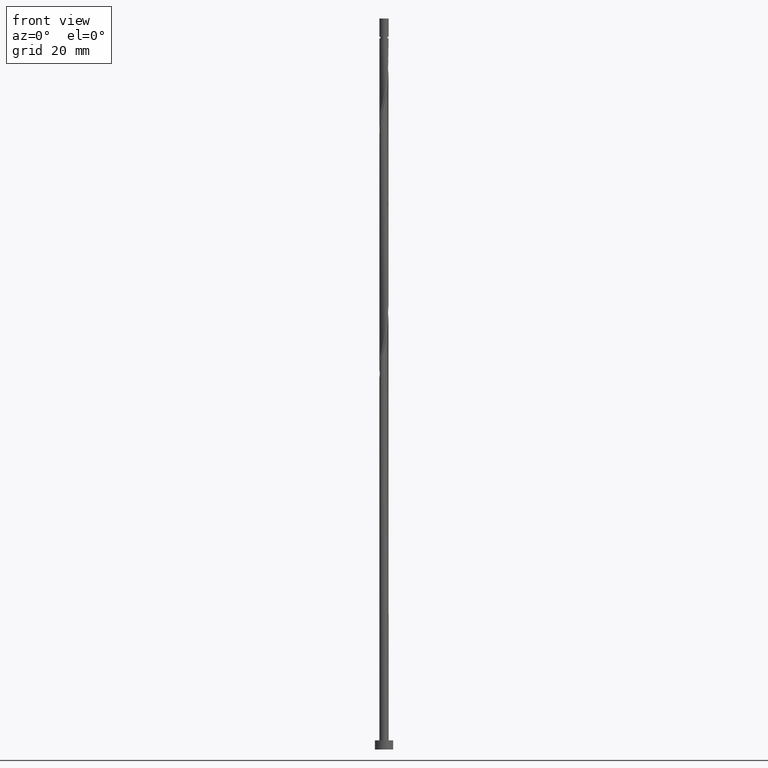
[diagram: clean part render]
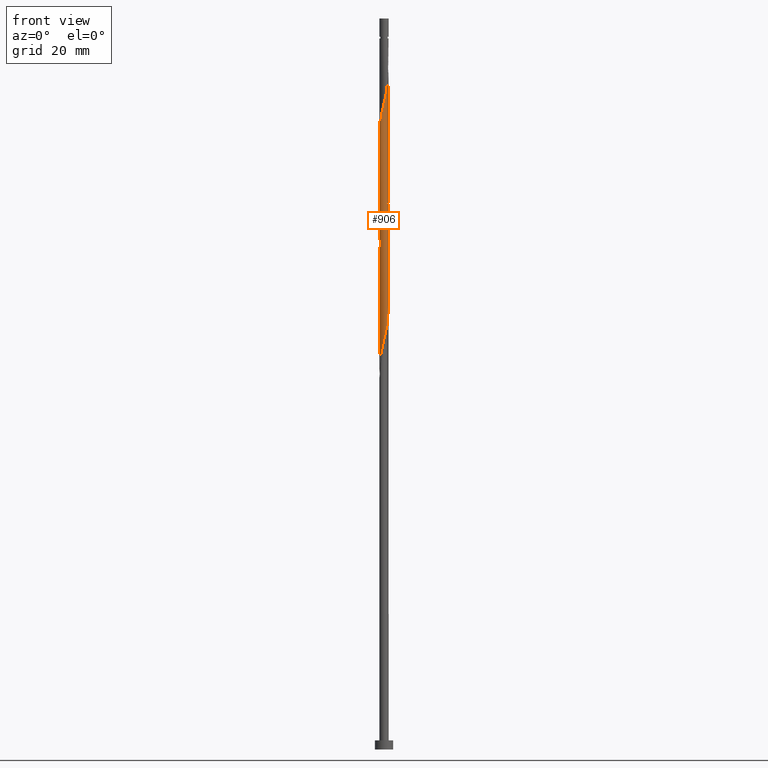
[diagram: same view with one face highlighted and labeled with its STEP entity id]
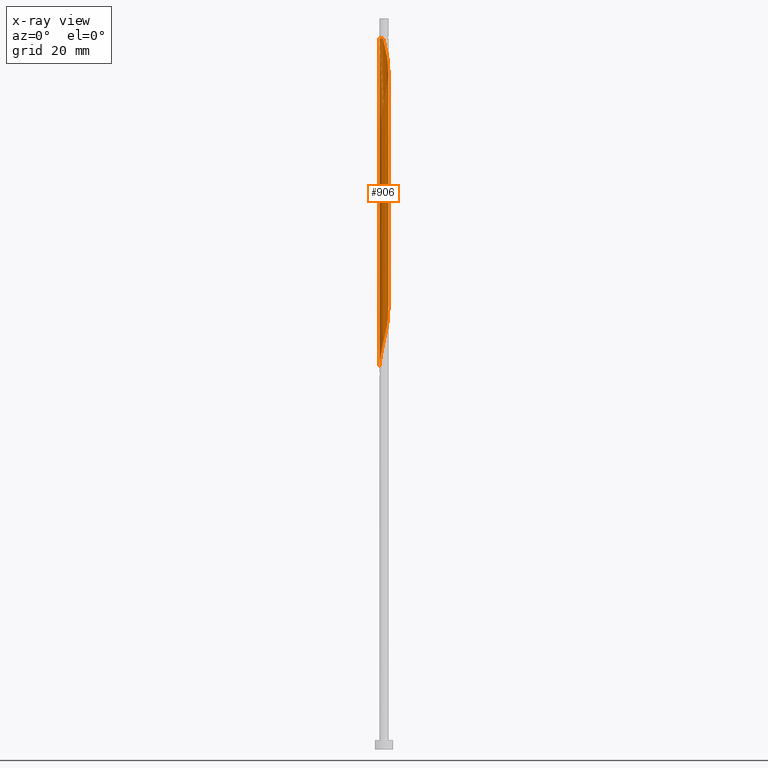
[diagram: x-ray of the same camera — body ghosted, the highlighted face saturated]
A machine part, front view. The second image highlights one B-rep face of the part: STEP entity #906.
The next image is the same camera in x-ray: the body ghosted, the highlighted face saturated — about 0% of this face is hidden behind the body in this view.
In plain terms, the highlighted cylindrical surface (bore or boss wall) has radius 1 mm, axis along (-0, -0, -1).
Its self-contained STEP definition (entity closure, byte-faithful):
#2 = CARTESIAN_POINT ( 'NONE',  ( -0.9417047178041579869, 0.3364405214378821118, 135.0104604436105262 ) ) ;
#5 = CARTESIAN_POINT ( 'NONE',  ( -1.000000000000001554, 1.495682070349635480E-16, 134.7670665703702184 ) ) ;
#14 = ORIENTED_EDGE ( 'NONE', *, *, #654, .T. ) ;
#27 = CARTESIAN_POINT ( 'NONE',  ( -0.9983453082824710334, -0.05750343842224310553, 135.0104604436104978 ) ) ;
#38 = DIRECTION ( 'NONE',  ( -1.000000000000000000, 0.000000000000000000, 0.000000000000000000 ) ) ;
#42 = VERTEX_POINT ( 'NONE', #848 ) ;
#56 = CARTESIAN_POINT ( 'NONE',  ( 0.9415987439861390751, 0.3661475155560027783, 98.04076347391352897 ) ) ;
#58 = ORIENTED_EDGE ( 'NONE', *, *, #1383, .T. ) ;
#66 = CARTESIAN_POINT ( 'NONE',  ( 0.6972353404242070951, 0.7168422979034808629, 99.85894529209534198 ) ) ;
#73 = CARTESIAN_POINT ( 'NONE',  ( -0.5941689777682084284, -0.8170896056626779647, 113.7983392314893081 ) ) ;
#81 = CARTESIAN_POINT ( 'NONE',  ( 0.9983453082824710334, -0.05750343842224334839, 122.8892483223984016 ) ) ;
#98 = CARTESIAN_POINT ( 'NONE',  ( -0.4670345966523055670, -0.8842390432059765715, 87.73773317088321733 ) ) ;
#118 = CARTESIAN_POINT ( 'NONE',  ( 0.7242137496448688427, 0.7044051693801136604, 151.3740968072468718 ) ) ;
#121 = ORIENTED_EDGE ( 'NONE', *, *, #484, .F. ) ;
#125 = CARTESIAN_POINT ( 'NONE',  ( 0.8003017030802060949, -0.6165949901442836500, 145.3134907466407526 ) ) ;
#133 = CARTESIAN_POINT ( 'NONE',  ( -0.9900775620072760352, 0.2010438236649824961, 135.6165210496711211 ) ) ;
#135 = CARTESIAN_POINT ( 'NONE',  ( 0.9417047178041579869, 0.3364405214378818343, 149.5559149890650588 ) ) ;
#146 = CARTESIAN_POINT ( 'NONE',  ( -1.000000000000001110, -0.02877552652382780324, 134.8891645750884152 ) ) ;
#169 = CARTESIAN_POINT ( 'NONE',  ( 0.8933318736010402716, -0.4718372192107816998, 121.0710665042165601 ) ) ;
#180 = CARTESIAN_POINT ( 'NONE',  ( -0.4964241347574803176, 0.8799064019851173812, 105.3134907466408094 ) ) ;
#187 = EDGE_CURVE ( 'NONE', #1030, #42, #781, .T. ) ;
#191 = CARTESIAN_POINT ( 'NONE',  ( -0.7242137496448687317, 0.7044051693801144376, 106.5256119587620134 ) ) ;
#199 = CARTESIAN_POINT ( 'NONE',  ( 0.4670345966523056225, 0.8842390432059765715, 101.0710665042165601 ) ) ;
#208 = CARTESIAN_POINT ( 'NONE',  ( -0.1989974874213290557, -0.9800000000000004263, 88.94985438300443548 ) ) ;
#231 = ORIENTED_EDGE ( 'NONE', *, *, #187, .F. ) ;
#234 = CARTESIAN_POINT ( 'NONE',  ( -0.8087728116229543351, 0.5881211942954479577, 133.7983392314892797 ) ) ;
#242 = CARTESIAN_POINT ( 'NONE',  ( 0.7242137496448688427, -0.7044051693801139935, 93.19227862542872742 ) ) ;
#243 = CARTESIAN_POINT ( 'NONE',  ( 0.4670345966523055115, -0.8842390432059766825, 143.4953089284589964 ) ) ;
#246 = DIRECTION ( 'NONE',  ( -0.000000000000000000, -0.000000000000000000, -1.000000000000000000 ) ) ;
#249 = CARTESIAN_POINT ( 'NONE',  ( 0.6972353404242072061, -0.7168422979034807518, 144.7074301405801577 ) ) ;
#257 = CARTESIAN_POINT ( 'NONE',  ( -0.05809475930625484369, 1.008611519250725008, 155.0104604436105262 ) ) ;
#272 = VERTEX_POINT ( 'NONE', #934 ) ;
#308 = CARTESIAN_POINT ( 'NONE',  ( 0.05809475930625499634, 1.008611519250725230, 102.8892483223983874 ) ) ;
#313 = CARTESIAN_POINT ( 'NONE',  ( -0.9417047178041579869, 0.3364405214378821118, 108.3437937769438406 ) ) ;
#327 = CARTESIAN_POINT ( 'NONE',  ( -0.8003017030802065390, -0.6165949901442835390, 112.5862180193680899 ) ) ;
#345 = CARTESIAN_POINT ( 'NONE',  ( 0.9900775620072760352, -0.2010438236649826627, 122.2831877163377641 ) ) ;
#357 = CARTESIAN_POINT ( 'NONE',  ( -0.8933318736010402716, 0.4718372192107816998, 134.4043998375499029 ) ) ;
#359 = CARTESIAN_POINT ( 'NONE',  ( -0.8933318736010399386, -0.4718372192107817553, 136.8286422617922824 ) ) ;
#361 = VERTEX_POINT ( 'NONE', #995 ) ;
#366 = LINE ( 'NONE', #478, #518 ) ;
#367 = CARTESIAN_POINT ( 'NONE',  ( 0.8933318736010402716, -0.4718372192107816998, 94.40439983754988873 ) ) ;
#368 = CARTESIAN_POINT ( 'NONE',  ( 0.1989974874213288336, -0.9800000000000004263, 142.2831877163378067 ) ) ;
#374 = CARTESIAN_POINT ( 'NONE',  ( 1.000000000000001998, 0.1145289273851175932, 123.6186021486099804 ) ) ;
#376 = CARTESIAN_POINT ( 'NONE',  ( 0.8933318736010401606, 0.4718372192107813112, 150.1619755951256820 ) ) ;
#394 = CARTESIAN_POINT ( 'NONE',  ( 0.9983453082824710334, 0.05750343842224297369, 148.3437937769438690 ) ) ;
#397 = VERTEX_POINT ( 'NONE', #959 ) ;
#423 = CARTESIAN_POINT ( 'NONE',  ( 0.9741058992719026088, 0.2260922311882493374, 97.43470286785291989 ) ) ;
#424 = AXIS2_PLACEMENT_3D ( 'NONE', #759, #1466, #38 ) ;
#428 = CARTESIAN_POINT ( 'NONE',  ( -1.006613054557666365, -0.08603694682049632669, 110.1619755951256678 ) ) ;
#440 = CARTESIAN_POINT ( 'NONE',  ( 0.5941689777682084284, 0.8170896056626775206, 100.4650058981559653 ) ) ;
#443 = VERTEX_POINT ( 'NONE', #632 ) ;
#447 = CARTESIAN_POINT ( 'NONE',  ( -0.4670345966523055670, -0.8842390432059765715, 114.4043998375498887 ) ) ;
#458 = CARTESIAN_POINT ( 'NONE',  ( 1.000000000000000000, 1.224646799147353207E-16, 160.0000000000000000 ) ) ;
#464 = CARTESIAN_POINT ( 'NONE',  ( 0.8087728116229545572, -0.5881211942954478467, 93.79833923148926544 ) ) ;
#478 = CARTESIAN_POINT ( 'NONE',  ( -1.000000000000000000, 0.000000000000000000, 160.0000000000000000 ) ) ;
#479 = CARTESIAN_POINT ( 'NONE',  ( 0.6103189422011741083, 0.7921557856826160204, 151.9801574133074666 ) ) ;
#484 = EDGE_CURVE ( 'NONE', #361, #999, #1410, .T. ) ;
#485 = CARTESIAN_POINT ( 'NONE',  ( -0.4964241347574803176, 0.8799064019851173812, 131.9801574133075235 ) ) ;
#487 = CARTESIAN_POINT ( 'NONE',  ( -0.9900775620072758132, -0.2010438236649823851, 135.6165210496711211 ) ) ;
#494 = CARTESIAN_POINT ( 'NONE',  ( -1.000000000000001554, -5.234887246223783469E-17, 136.4659755289719953 ) ) ;
#502 = CARTESIAN_POINT ( 'NONE',  ( 1.000000000000001554, -1.607858225625876408E-16, 123.1326421956386810 ) ) ;
#509 = CARTESIAN_POINT ( 'NONE',  ( -0.8087728116229543351, -0.5881211942954478467, 137.4347028678529057 ) ) ;
#513 = CARTESIAN_POINT ( 'NONE',  ( 0.8087728116229545572, -0.5881211942954478467, 120.4650058981559511 ) ) ;
#518 = VECTOR ( 'NONE', #986, 1000.000000000000000 ) ;
#546 = CARTESIAN_POINT ( 'NONE',  ( -0.05809475930625526696, -1.008611519250725452, 116.2225816557317160 ) ) ;
#554 = CARTESIAN_POINT ( 'NONE',  ( -0.8933318736010402716, 0.4718372192107816998, 107.7377331708832173 ) ) ;
#560 = CARTESIAN_POINT ( 'NONE',  ( -0.6972353404242074282, -0.7168422979034806408, 113.1922786254286990 ) ) ;
#578 = CARTESIAN_POINT ( 'NONE',  ( 0.9417047178041579869, -0.3364405214378822229, 95.01046044361049780 ) ) ;
#594 = VECTOR ( 'NONE', #1219, 1000.000000000000000 ) ;
#598 = CARTESIAN_POINT ( 'NONE',  ( 0.1989974874213291667, 0.9800000000000004263, 128.9498543830044355 ) ) ;
#601 = CARTESIAN_POINT ( 'NONE',  ( -0.6972353404242074282, -0.7168422979034806408, 86.52561195876199918 ) ) ;
#607 = LINE ( 'NONE', #965, #594 ) ;
#618 = CARTESIAN_POINT ( 'NONE',  ( 0.8087728116229545572, 0.5881211942954477356, 150.7680362011862485 ) ) ;
#619 = CARTESIAN_POINT ( 'NONE',  ( 0.2284171888200486888, -0.9841228509061528129, 117.4347028678529483 ) ) ;
#624 = CARTESIAN_POINT ( 'NONE',  ( -1.000000000000001554, 0.02877552652382344908, 136.3438775242537702 ) ) ;
#632 = CARTESIAN_POINT ( 'NONE',  ( 1.000000000000000000, 1.224646799147353207E-16, 155.6165210496711211 ) ) ;
#650 = CARTESIAN_POINT ( 'NONE',  ( 0.6103189422011741083, -0.7921557856826162425, 119.2528846860347613 ) ) ;
#654 = EDGE_CURVE ( 'NONE', #272, #999, #944, .T. ) ;
#662 = CARTESIAN_POINT ( 'NONE',  ( -0.9983453082824710334, 0.05750343842224320962, 109.5559149890650730 ) ) ;
#675 =( BOUNDED_CURVE ( )  B_SPLINE_CURVE ( 2, ( #494, #624, #1309, #133, #2, #357, #234, #1195, #715, #485, #1226, #1105, #839, #1091, #598, #1330, #1099, #1314, #1433, #1338, #1441, #1077, #1539, #374, #502 ),
 .UNSPECIFIED., .F., .T. ) 
 B_SPLINE_CURVE_WITH_KNOTS ( ( 3, 2, 2, 2, 2, 2, 2, 2, 2, 2, 2, 2, 3 ),
 ( 0.4295252162417510511, 0.4318181818181818232, 0.4431818181818181768, 0.4545454545454545303, 0.4659090909090908839, 0.4772727272727272929, 0.4886363636363636465, 0.5000000000000000000, 0.5113636363636363535, 0.5227272727272727071, 0.5340909090909090606, 0.5454545454545454142, 0.5545252162417513286 ),
 .UNSPECIFIED. ) 
 CURVE ( )  GEOMETRIC_REPRESENTATION_ITEM ( )  RATIONAL_B_SPLINE_CURVE ( ( 0.9061101570135536853, 0.9072237824201359047, 0.9090909090909136125, 0.8998376744372159619, 0.9090909090909136125, 0.8998376744372159619, 0.9090909090909136125, 0.8998376744372159619, 0.9090909090909136125, 0.8998376744372159619, 0.9090909090909136125, 0.8998376744372159619, 0.9090909090909136125, 0.8998376744372159619, 0.9090909090909136125, 0.8998376744372159619, 0.9090909090909136125, 0.8998376744372159619, 0.9090909090909136125, 0.8998376744372159619, 0.9090909090909136125, 0.8998376744372159619, 0.9090909090909136125, 0.9017048011079934478, 0.9061101570135539074 ) ) 
 REPRESENTATION_ITEM ( '' )  );
#679 = CARTESIAN_POINT ( 'NONE',  ( 0.1989974874213291667, 0.9800000000000004263, 102.2831877163377925 ) ) ;
#682 = CARTESIAN_POINT ( 'NONE',  ( 1.000000000000001332, -0.02877552652382781018, 123.0105441909204700 ) ) ;
#693 = AXIS2_PLACEMENT_3D ( 'NONE', #858, #246, #1450 ) ;
#698 = CARTESIAN_POINT ( 'NONE',  ( 0.6103189422011741083, -0.7921557856826162425, 92.58621801936806150 ) ) ;
#715 = CARTESIAN_POINT ( 'NONE',  ( -0.6103189422011743304, 0.7921557856826161315, 132.5862180193680615 ) ) ;
#717 = CARTESIAN_POINT ( 'NONE',  ( -0.2284171888200485223, -0.9841228509061528129, 140.4650058981559368 ) ) ;
#724 = CARTESIAN_POINT ( 'NONE',  ( 0.4964241347574802066, -0.8799064019851173812, 91.98015741330749506 ) ) ;
#725 = CARTESIAN_POINT ( 'NONE',  ( -0.6103189422011742193, -0.7921557856826155763, 138.6468240799741807 ) ) ;
#742 = CARTESIAN_POINT ( 'NONE',  ( -0.1989974874213561729, 0.9800000000002743183, 155.6165210496710642 ) ) ;
#759 = CARTESIAN_POINT ( 'NONE',  ( 0.000000000000000000, 0.000000000000000000, 155.6165210496711211 ) ) ;
#761 = EDGE_CURVE ( 'NONE', #361, #42, #607, .T. ) ;
#781 =( BOUNDED_CURVE ( )  B_SPLINE_CURVE ( 2, ( #794, #682, #81, #345, #833, #169, #513, #881, #650, #1131, #1013, #619, #1094, #546, #1507, #1496, #447, #73, #560, #327, #1280, #802, #787, #428, #662, #915, #313, #554, #1021, #191, #1038, #180, #1387, #1041, #1484, #308, #679, #1378, #199, #440, #66, #1142, #782, #56, #423, #1053, #942, #1516, #578, #367, #464, #242, #698, #724, #933, #1210, #842, #1288, #208, #1540, #98, #1085, #601, #958, #1418, #818, #1304, #1176, #1522 ),
 .UNSPECIFIED., .F., .T. ) 
 B_SPLINE_CURVE_WITH_KNOTS ( ( 3, 2, 2, 2, 2, 2, 2, 2, 2, 2, 2, 2, 2, 2, 2, 2, 2, 2, 2, 2, 2, 2, 2, 2, 2, 2, 2, 2, 2, 2, 2, 2, 2, 2, 3 ),
 ( 0.5545252162417513286, 0.5568181818181817677, 0.5681818181818182323, 0.5795454545454545858, 0.5909090909090909394, 0.6022727272727272929, 0.6136363636363636465, 0.6250000000000000000, 0.6363636363636363535, 0.6477272727272727071, 0.6590909090909090606, 0.6704545454545454142, 0.6818181818181817677, 0.6931818181818182323, 0.7045454545454545858, 0.7159090909090909394, 0.7272727272727272929, 0.7386363636363636465, 0.7500000000000000000, 0.7613636363636363535, 0.7727272727272727071, 0.7840909090909090606, 0.7954545454545454142, 0.8068181818181817677, 0.8181818181818182323, 0.8295454545454545858, 0.8409090909090909394, 0.8522727272727272929, 0.8636363636363636465, 0.8750000000000000000, 0.8863636363636363535, 0.8977272727272727071, 0.9090909090909090606, 0.9204545454545454142, 0.9295252162417509956 ),
 .UNSPECIFIED. ) 
 CURVE ( )  GEOMETRIC_REPRESENTATION_ITEM ( )  RATIONAL_B_SPLINE_CURVE ( ( 0.9061101570135539074, 0.9072237824201361267, 0.9090909090909136125, 0.8998376744372159619, 0.9090909090909136125, 0.8998376744372159619, 0.9090909090909136125, 0.8998376744372159619, 0.9090909090909136125, 0.8998376744372159619, 0.9090909090909136125, 0.8998376744372159619, 0.9090909090909136125, 0.8998376744372159619, 0.9090909090909136125, 0.8998376744372159619, 0.9090909090909136125, 0.8998376744372159619, 0.9090909090909136125, 0.8998376744372159619, 0.9090909090909136125, 0.8998376744372159619, 0.9090909090909136125, 0.8998376744372159619, 0.9090909090909136125, 0.8998376744372159619, 0.9090909090909136125, 0.8998376744372159619, 0.9090909090909136125, 0.8998376744372159619, 0.9090909090909136125, 0.8998376744372159619, 0.9090909090909136125, 0.8998376744372159619, 0.9090909090909136125, 0.8998376744372159619, 0.9090909090909136125, 0.8998376744372159619, 0.9090909090909136125, 0.8998376744372159619, 0.9090909090909136125, 0.8998376744372159619, 0.9090909090909136125, 0.8998376744372159619, 0.9090909090909136125, 0.8998376744372159619, 0.9090909090909136125, 0.8998376744372159619, 0.9090909090909136125, 0.8998376744372159619, 0.9090909090909136125, 0.8998376744372159619, 0.9090909090909136125, 0.8998376744372159619, 0.9090909090909136125, 0.8998376744372159619, 0.9090909090909136125, 0.8998376744372159619, 0.9090909090909136125, 0.8998376744372159619, 0.9090909090909136125, 0.8998376744372159619, 0.9090909090909136125, 0.8998376744372159619, 0.9090909090909136125, 0.8998376744372159619, 0.9090909090909136125, 0.9017048011079936698, 0.9061101570135536853 ) ) 
 REPRESENTATION_ITEM ( '' )  );
#782 = CARTESIAN_POINT ( 'NONE',  ( 0.8709502235331721964, 0.4913712528501436028, 98.64682407997412383 ) ) ;
#787 = CARTESIAN_POINT ( 'NONE',  ( -0.9741058992719026088, -0.2260922311882497260, 110.7680362011862485 ) ) ;
#794 = CARTESIAN_POINT ( 'NONE',  ( 1.000000000000001554, -1.607858225625876408E-16, 123.1326421956386810 ) ) ;
#802 = CARTESIAN_POINT ( 'NONE',  ( -0.9415987439861389641, -0.3661475155560033334, 111.3740968072468718 ) ) ;
#818 = CARTESIAN_POINT ( 'NONE',  ( -0.9415987439861389641, -0.3661475155560033334, 84.70743014058020037 ) ) ;
#825 = EDGE_CURVE ( 'NONE', #397, #1030, #675, .T. ) ;
#833 = CARTESIAN_POINT ( 'NONE',  ( 0.9417047178041579869, -0.3364405214378822229, 121.6771271102771692 ) ) ;
#834 = EDGE_CURVE ( 'NONE', #272, #397, #366, .T. ) ;
#836 = EDGE_LOOP ( 'NONE', ( #1372, #14, #121, #1115, #231, #1365, #58, #1122 ) ) ;
#839 = CARTESIAN_POINT ( 'NONE',  ( -0.08516121475689676645, 0.9963671850784390216, 130.1619755951256536 ) ) ;
#842 = CARTESIAN_POINT ( 'NONE',  ( 0.08516121475689648890, -0.9963671850784392436, 90.16197559512565363 ) ) ;
#848 = CARTESIAN_POINT ( 'NONE',  ( -1.000000000000001554, -5.234887246223783469E-17, 83.13264219563869517 ) ) ;
#858 = CARTESIAN_POINT ( 'NONE',  ( 0.000000000000000000, 0.000000000000000000, 160.0000000000000000 ) ) ;
#860 = CARTESIAN_POINT ( 'NONE',  ( 0.2284171888200486611, 0.9841228509061528129, 153.7983392314892797 ) ) ;
#878 = CARTESIAN_POINT ( 'NONE',  ( 0.9900775620072758132, 0.2010438236649822463, 148.9498543830044923 ) ) ;
#881 = CARTESIAN_POINT ( 'NONE',  ( 0.7242137496448688427, -0.7044051693801139935, 119.8589452920953562 ) ) ;
#906 = ADVANCED_FACE ( 'NONE', ( #1323 ), #974, .T. ) ;
#915 = CARTESIAN_POINT ( 'NONE',  ( -0.9900775620072760352, 0.2010438236649824961, 108.9498543830044781 ) ) ;
#933 = CARTESIAN_POINT ( 'NONE',  ( 0.3624206617887644200, -0.9320146264456352636, 91.37409680724687178 ) ) ;
#934 = CARTESIAN_POINT ( 'NONE',  ( -0.9999999999999928946, 0.000000000000000000, 155.6165210496711211 ) ) ;
#939 = DIRECTION ( 'NONE',  ( -0.000000000000000000, -0.000000000000000000, -1.000000000000000000 ) ) ;
#942 = CARTESIAN_POINT ( 'NONE',  ( 0.9983453082824710334, -0.05750343842224334839, 96.22258165573173017 ) ) ;
#944 = CIRCLE ( 'NONE', #424, 0.9999999999999928946 ) ;
#958 = CARTESIAN_POINT ( 'NONE',  ( -0.8003017030802065390, -0.6165949901442835390, 85.91955135270137589 ) ) ;
#959 = CARTESIAN_POINT ( 'NONE',  ( -1.000000000000001554, -5.234887246223783469E-17, 136.4659755289719953 ) ) ;
#965 = CARTESIAN_POINT ( 'NONE',  ( -1.000000000000000000, 0.000000000000000000, 160.0000000000000000 ) ) ;
#967 = CARTESIAN_POINT ( 'NONE',  ( -0.9417047178041579869, -0.3364405214378820008, 136.2225816557316591 ) ) ;
#974 = CYLINDRICAL_SURFACE ( 'NONE', #693, 1.000000000000000000 ) ;
#977 = CARTESIAN_POINT ( 'NONE',  ( 0.4964241347574799290, 0.8799064019851173812, 152.5862180193680899 ) ) ;
#986 = DIRECTION ( 'NONE',  ( -0.000000000000000000, -0.000000000000000000, -1.000000000000000000 ) ) ;
#988 = CARTESIAN_POINT ( 'NONE',  ( -0.7242137496448685097, -0.7044051693801141045, 138.0407634739135005 ) ) ;
#995 = CARTESIAN_POINT ( 'NONE',  ( -1.000000000000001554, 1.495682070349635480E-16, 134.7670665703702184 ) ) ;
#999 = VERTEX_POINT ( 'NONE', #1350 ) ;
#1013 = CARTESIAN_POINT ( 'NONE',  ( 0.3624206617887644200, -0.9320146264456352636, 118.0407634739135290 ) ) ;
#1021 = CARTESIAN_POINT ( 'NONE',  ( -0.8087728116229543351, 0.5881211942954479577, 107.1316725648226225 ) ) ;
#1030 = VERTEX_POINT ( 'NONE', #1147 ) ;
#1038 = CARTESIAN_POINT ( 'NONE',  ( -0.6103189422011743304, 0.7921557856826161315, 105.9195513527014043 ) ) ;
#1041 = CARTESIAN_POINT ( 'NONE',  ( -0.2284171888200486333, 0.9841228509061528129, 104.1013695345195913 ) ) ;
#1047 = VECTOR ( 'NONE', #939, 1000.000000000000000 ) ;
#1053 = CARTESIAN_POINT ( 'NONE',  ( 1.006613054557666365, 0.08603694682049599363, 96.82864226179233924 ) ) ;
#1077 = CARTESIAN_POINT ( 'NONE',  ( 0.9415987439861390751, 0.3661475155560027783, 124.7074301405802146 ) ) ;
#1085 = CARTESIAN_POINT ( 'NONE',  ( -0.5941689777682084284, -0.8170896056626779647, 87.13167256482265088 ) ) ;
#1091 = CARTESIAN_POINT ( 'NONE',  ( 0.05809475930625499634, 1.008611519250725230, 129.5559149890650303 ) ) ;
#1092 = CARTESIAN_POINT ( 'NONE',  ( -0.4964241347574803176, -0.8799064019851171592, 139.2528846860347471 ) ) ;
#1094 = CARTESIAN_POINT ( 'NONE',  ( 0.08516121475689648890, -0.9963671850784392436, 116.8286422617923535 ) ) ;
#1099 = CARTESIAN_POINT ( 'NONE',  ( 0.4670345966523056225, 0.8842390432059765715, 127.7377331708832457 ) ) ;
#1105 = CARTESIAN_POINT ( 'NONE',  ( -0.2284171888200486333, 0.9841228509061528129, 130.7680362011862769 ) ) ;
#1115 = ORIENTED_EDGE ( 'NONE', *, *, #761, .T. ) ;
#1122 = ORIENTED_EDGE ( 'NONE', *, *, #825, .F. ) ;
#1131 = CARTESIAN_POINT ( 'NONE',  ( 0.4964241347574802066, -0.8799064019851173812, 118.6468240799741238 ) ) ;
#1142 = CARTESIAN_POINT ( 'NONE',  ( 0.8003017030802062060, 0.6165949901442837611, 99.25288468603476133 ) ) ;
#1147 = CARTESIAN_POINT ( 'NONE',  ( 1.000000000000001554, -1.607858225625876408E-16, 123.1326421956386810 ) ) ;
#1176 = CARTESIAN_POINT ( 'NONE',  ( -1.000000000000001332, -0.1145289273851220480, 83.61860214860999463 ) ) ;
#1195 = CARTESIAN_POINT ( 'NONE',  ( -0.7242137496448687317, 0.7044051693801144376, 133.1922786254287132 ) ) ;
#1198 = CARTESIAN_POINT ( 'NONE',  ( 0.3399002155364027056, -0.9513884807492758444, 142.8892483223983163 ) ) ;
#1210 = CARTESIAN_POINT ( 'NONE',  ( 0.2284171888200486888, -0.9841228509061528129, 90.76803620118627691 ) ) ;
#1211 = CARTESIAN_POINT ( 'NONE',  ( 0.9415987439861390751, -0.3661475155560029449, 146.5256119587619992 ) ) ;
#1219 = DIRECTION ( 'NONE',  ( -0.000000000000000000, -0.000000000000000000, -1.000000000000000000 ) ) ;
#1221 = CARTESIAN_POINT ( 'NONE',  ( 1.006613054557666365, -0.08603694682049632669, 147.7377331708833310 ) ) ;
#1226 = CARTESIAN_POINT ( 'NONE',  ( -0.3624206617887644200, 0.9320146264456352636, 131.3740968072469002 ) ) ;
#1280 = CARTESIAN_POINT ( 'NONE',  ( -0.8709502235331724185, -0.4913712528501434917, 111.9801574133074524 ) ) ;
#1288 = CARTESIAN_POINT ( 'NONE',  ( -0.05809475930625526696, -1.008611519250725452, 89.55591498906508718 ) ) ;
#1292 = LINE ( 'NONE', #458, #1047 ) ;
#1304 = CARTESIAN_POINT ( 'NONE',  ( -0.9741058992719026088, -0.2260922311882497260, 84.10136953451960551 ) ) ;
#1309 = CARTESIAN_POINT ( 'NONE',  ( -0.9983453082824710334, 0.05750343842224320962, 136.2225816557316875 ) ) ;
#1314 = CARTESIAN_POINT ( 'NONE',  ( 0.5941689777682084284, 0.8170896056626775206, 127.1316725648226651 ) ) ;
#1323 = FACE_OUTER_BOUND ( 'NONE', #836, .T. ) ;
#1325 = CARTESIAN_POINT ( 'NONE',  ( 0.05809475930625497553, -1.008611519250724786, 141.6771271102770982 ) ) ;
#1330 = CARTESIAN_POINT ( 'NONE',  ( 0.3399002155364030942, 0.9513884807492756224, 128.3437937769438406 ) ) ;
#1331 = CARTESIAN_POINT ( 'NONE',  ( 0.08516121475689687748, 0.9963671850784390216, 154.4043998375499029 ) ) ;
#1338 = CARTESIAN_POINT ( 'NONE',  ( 0.8003017030802062060, 0.6165949901442837611, 125.9195513527014327 ) ) ;
#1350 = CARTESIAN_POINT ( 'NONE',  ( -0.1989974874213561729, 0.9800000000002743183, 155.6165210496710642 ) ) ;
#1353 = CARTESIAN_POINT ( 'NONE',  ( -0.08516121475689678033, -0.9963671850784390216, 141.0710665042165601 ) ) ;
#1365 = ORIENTED_EDGE ( 'NONE', *, *, #1383, .F. ) ;
#1372 = ORIENTED_EDGE ( 'NONE', *, *, #834, .F. ) ;
#1378 = CARTESIAN_POINT ( 'NONE',  ( 0.3399002155364030942, 0.9513884807492756224, 101.6771271102771550 ) ) ;
#1383 = EDGE_CURVE ( 'NONE', #443, #1030, #1292, .T. ) ;
#1387 = CARTESIAN_POINT ( 'NONE',  ( -0.3624206617887644200, 0.9320146264456352636, 104.7074301405801862 ) ) ;
#1410 =( BOUNDED_CURVE ( )  B_SPLINE_CURVE ( 2, ( #5, #146, #27, #487, #967, #359, #509, #988, #725, #1092, #1435, #717, #1353, #1325, #368, #1198, #243, #1452, #249, #125, #1460, #1211, #1541, #1221, #394, #878, #135, #376, #618, #118, #479, #977, #1442, #860, #1331, #257, #742 ),
 .UNSPECIFIED., .F., .T. ) 
 B_SPLINE_CURVE_WITH_KNOTS ( ( 3, 2, 2, 2, 2, 2, 2, 2, 2, 2, 2, 2, 2, 2, 2, 2, 2, 2, 3 ),
 ( 0.5545252162417514397, 0.5568181818181818787, 0.5681818181818181213, 0.5795454545454545858, 0.5909090909090908283, 0.6022727272727272929, 0.6136363636363636465, 0.6250000000000000000, 0.6363636363636363535, 0.6477272727272727071, 0.6590909090909091717, 0.6704545454545454142, 0.6818181818181818787, 0.6931818181818181213, 0.7045454545454545858, 0.7159090909090908283, 0.7272727272727272929, 0.7386363636363636465, 0.7500000000000000000 ),
 .UNSPECIFIED. ) 
 CURVE ( )  GEOMETRIC_REPRESENTATION_ITEM ( )  RATIONAL_B_SPLINE_CURVE ( ( 0.9061101570135643435, 0.9072237824201464518, 0.9090909090909238266, 0.8998376744372262870, 0.9090909090909238266, 0.8998376744372262870, 0.9090909090909238266, 0.8998376744372262870, 0.9090909090909238266, 0.8998376744372262870, 0.9090909090909238266, 0.8998376744372262870, 0.9090909090909238266, 0.8998376744372262870, 0.9090909090909238266, 0.8998376744372262870, 0.9090909090909238266, 0.8998376744372262870, 0.9090909090909238266, 0.8998376744372262870, 0.9090909090909238266, 0.8998376744372262870, 0.9090909090909238266, 0.8998376744372262870, 0.9090909090909238266, 0.8998376744372262870, 0.9090909090909238266, 0.8998376744372262870, 0.9090909090909238266, 0.8998376744372262870, 0.9090909090909238266, 0.8998376744372262870, 0.9090909090909238266, 0.8998376744372262870, 0.9090909090909238266, 0.8998376744372262870, 0.9090909090909238266 ) ) 
 REPRESENTATION_ITEM ( '' )  );
#1418 = CARTESIAN_POINT ( 'NONE',  ( -0.8709502235331724185, -0.4913712528501434917, 85.31349074664082366 ) ) ;
#1433 = CARTESIAN_POINT ( 'NONE',  ( 0.6972353404242070951, 0.7168422979034808629, 126.5256119587620276 ) ) ;
#1435 = CARTESIAN_POINT ( 'NONE',  ( -0.3624206617887645865, -0.9320146264456351526, 139.8589452920953704 ) ) ;
#1441 = CARTESIAN_POINT ( 'NONE',  ( 0.8709502235331721964, 0.4913712528501436028, 125.3134907466408094 ) ) ;
#1442 = CARTESIAN_POINT ( 'NONE',  ( 0.3624206617887643089, 0.9320146264456351526, 153.1922786254286848 ) ) ;
#1450 = DIRECTION ( 'NONE',  ( -1.000000000000000000, 0.000000000000000000, 0.000000000000000000 ) ) ;
#1452 = CARTESIAN_POINT ( 'NONE',  ( 0.5941689777682084284, -0.8170896056626774095, 144.1013695345195060 ) ) ;
#1460 = CARTESIAN_POINT ( 'NONE',  ( 0.8709502235331721964, -0.4913712528501436028, 145.9195513527013759 ) ) ;
#1466 = DIRECTION ( 'NONE',  ( -0.000000000000000000, -0.000000000000000000, -1.000000000000000000 ) ) ;
#1484 = CARTESIAN_POINT ( 'NONE',  ( -0.08516121475689676645, 0.9963671850784390216, 103.4953089284589680 ) ) ;
#1496 = CARTESIAN_POINT ( 'NONE',  ( -0.3399002155364029831, -0.9513884807492756224, 115.0104604436105120 ) ) ;
#1507 = CARTESIAN_POINT ( 'NONE',  ( -0.1989974874213290557, -0.9800000000000004263, 115.6165210496711069 ) ) ;
#1516 = CARTESIAN_POINT ( 'NONE',  ( 0.9900775620072760352, -0.2010438236649826627, 95.61652104967107846 ) ) ;
#1522 = CARTESIAN_POINT ( 'NONE',  ( -1.000000000000001554, -5.234887246223783469E-17, 83.13264219563870938 ) ) ;
#1539 = CARTESIAN_POINT ( 'NONE',  ( 0.9741058992719026088, 0.2260922311882493374, 124.1013695345195771 ) ) ;
#1540 = CARTESIAN_POINT ( 'NONE',  ( -0.3399002155364029831, -0.9513884807492756224, 88.34379377694382640 ) ) ;
#1541 = CARTESIAN_POINT ( 'NONE',  ( 0.9741058992719027199, -0.2260922311882496982, 147.1316725648226225 ) ) ;